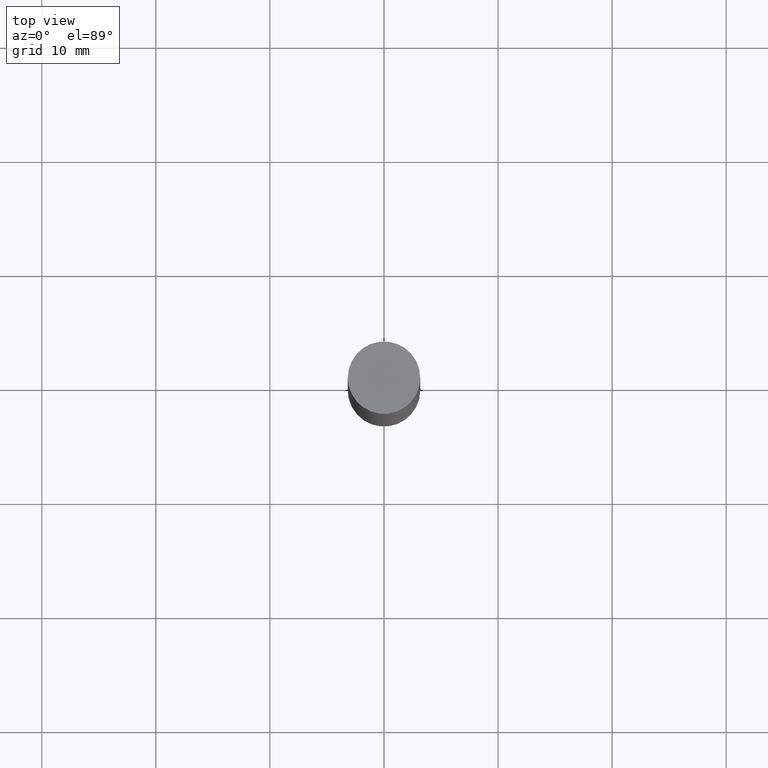
[diagram: clean part render]
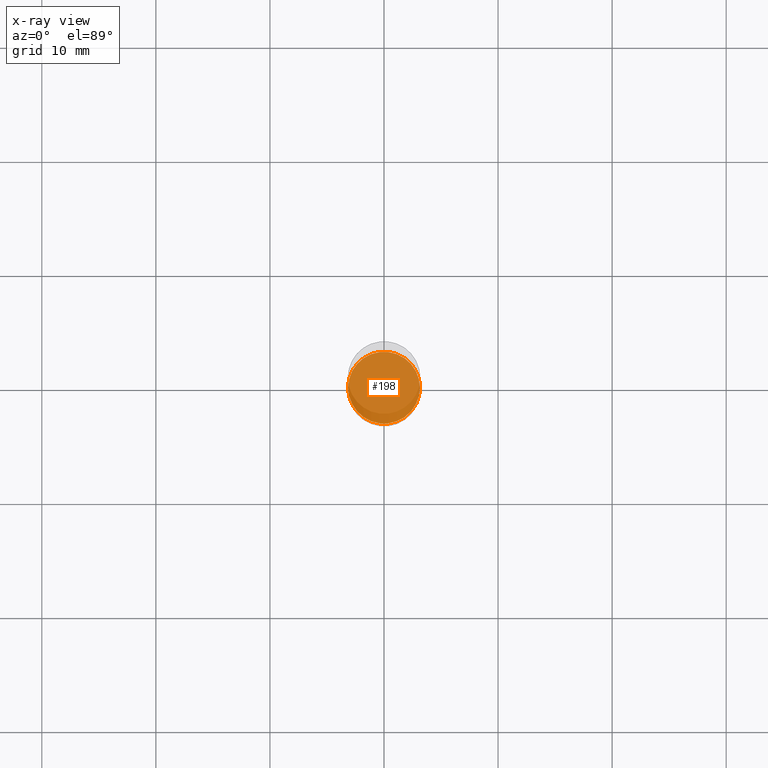
[diagram: x-ray — body ghosted, one internal face saturated and labeled with its STEP entity id]
A machine part, top view, then the same camera in x-ray: the body is ghosted and one INTERNAL B-rep face — a face not visible from any outside direction — is saturated and labeled: STEP entity #198.
In plain terms, the highlighted planar face has unit normal (-0, 0, 1).
Its self-contained STEP definition (entity closure, byte-faithful):
#9 = CARTESIAN_POINT ( 'NONE',  ( -0.1239999999999999991, -6.096591230995543750E-15, -1.999999999999999778 ) ) ;
#74 = DIRECTION ( 'NONE',  ( 1.000000000000000000, -6.982962677686270655E-15, 0.000000000000000000 ) ) ;
#86 = ORIENTED_EDGE ( 'NONE', *, *, #640, .F. ) ;
#106 = EDGE_CURVE ( 'NONE', #413, #547, #320, .T. ) ;
#110 = AXIS2_PLACEMENT_3D ( 'NONE', #401, #158, #622 ) ;
#111 = AXIS2_PLACEMENT_3D ( 'NONE', #247, #236, #74 ) ;
#158 = DIRECTION ( 'NONE',  ( -2.445468806185136597E-29, 3.491481338843145583E-15, 1.000000000000000000 ) ) ;
#198 = ADVANCED_FACE ( 'NONE', ( #208 ), #574, .F. ) ;
#208 = FACE_OUTER_BOUND ( 'NONE', #476, .T. ) ;
#236 = DIRECTION ( 'NONE',  ( -2.445468806185136597E-29, 3.491481338843145583E-15, 1.000000000000000000 ) ) ;
#243 = ORIENTED_EDGE ( 'NONE', *, *, #106, .F. ) ;
#247 = CARTESIAN_POINT ( 'NONE',  ( 4.890937612370272633E-29, -6.982962677686290376E-15, -1.999999999999999778 ) ) ;
#280 = CARTESIAN_POINT ( 'NONE',  ( 0.1239999999999999991, -7.848850049719387701E-15, -1.999999999999999778 ) ) ;
#320 = CIRCLE ( 'NONE', #110, 0.1239999999999999991 ) ;
#348 = DIRECTION ( 'NONE',  ( -2.438088387897960049E-29, 3.491481338843145188E-15, 1.000000000000000000 ) ) ;
#393 = CIRCLE ( 'NONE', #111, 0.1239999999999999991 ) ;
#401 = CARTESIAN_POINT ( 'NONE',  ( 4.890937612370272633E-29, -6.982962677686290376E-15, -1.999999999999999778 ) ) ;
#413 = VERTEX_POINT ( 'NONE', #9 ) ;
#476 = EDGE_LOOP ( 'NONE', ( #86, #243 ) ) ;
#547 = VERTEX_POINT ( 'NONE', #280 ) ;
#564 = DIRECTION ( 'NONE',  ( 1.000000000000000000, -6.982962677686265922E-15, 4.876176775795935793E-29 ) ) ;
#574 = PLANE ( 'NONE',  #643 ) ;
#622 = DIRECTION ( 'NONE',  ( 1.000000000000000000, -6.982962677686270655E-15, 0.000000000000000000 ) ) ;
#628 = CARTESIAN_POINT ( 'NONE',  ( 4.890937612370273194E-29, -6.982962677686291165E-15, -2.000000000000000000 ) ) ;
#640 = EDGE_CURVE ( 'NONE', #547, #413, #393, .T. ) ;
#643 = AXIS2_PLACEMENT_3D ( 'NONE', #628, #348, #564 ) ;